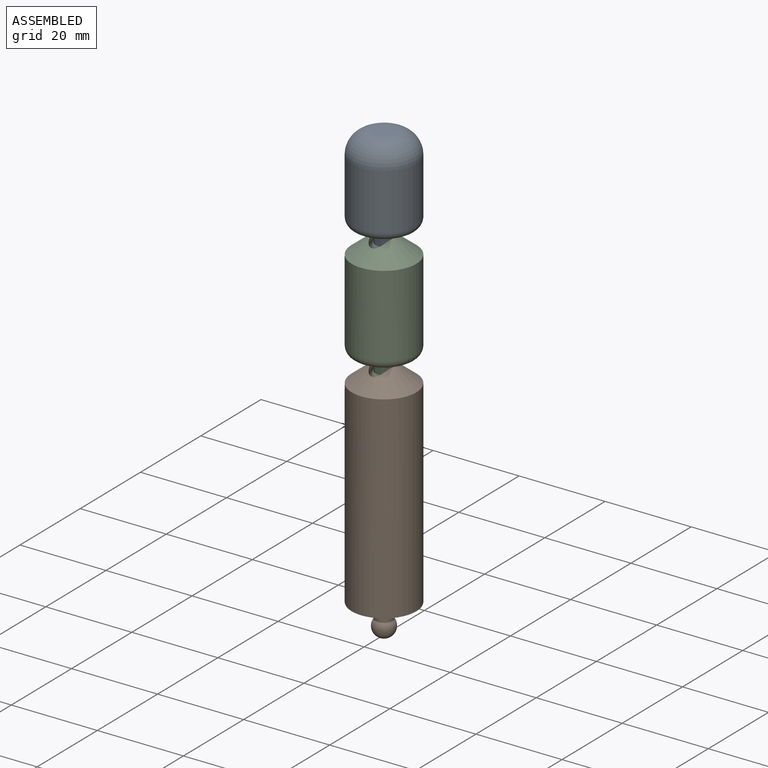
[diagram: assembled view]
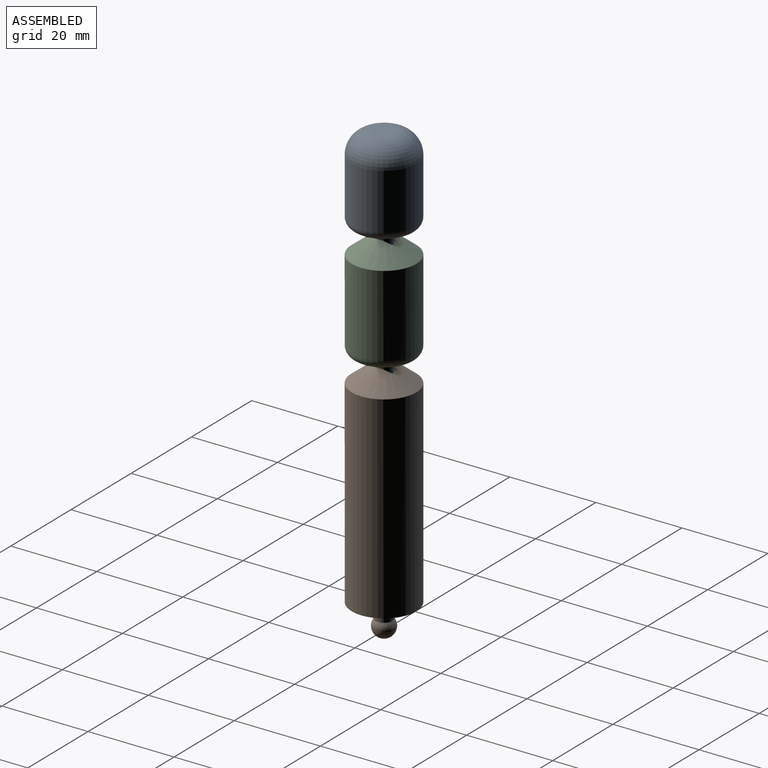
[diagram: assembled view, second angle]
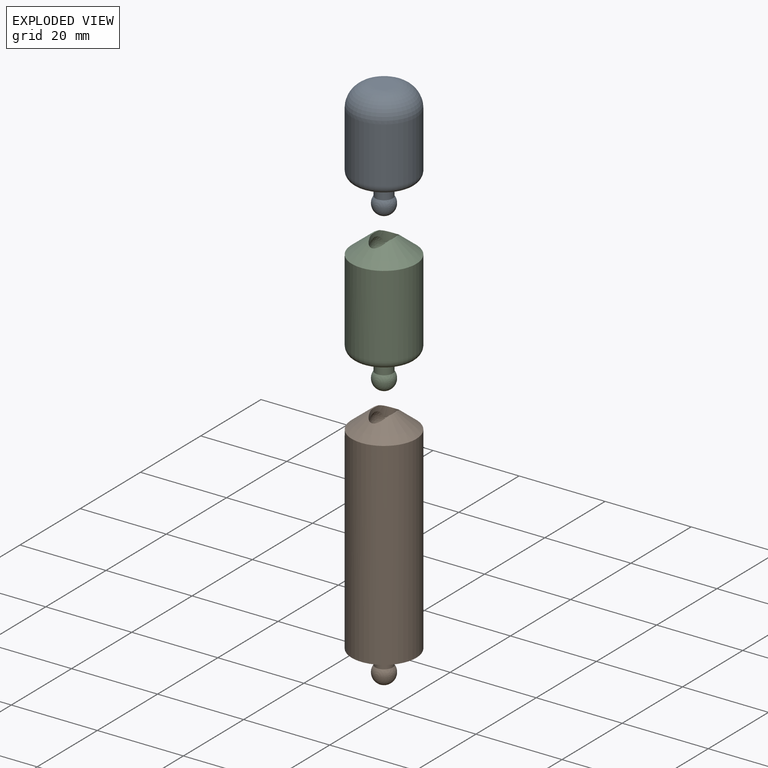
[diagram: exploded view]
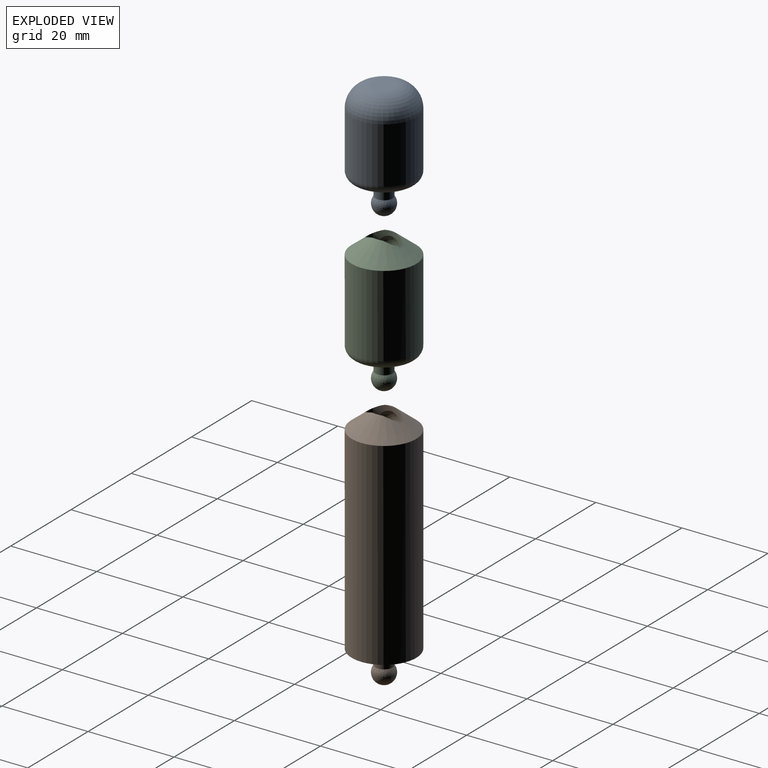
[diagram: exploded view, second angle]
ASSEMBLY  parts=3 mates=2
PART A: 9 faces, bbox 16.2x16.2x27.5 mm
  f0: cylinder r=7.5mm len=15mm, axis (0,0,-1), area 612.6mm2, adj f3,f6
  f1: plane 5x5mm, normal (0,0,1), area 19.6mm2, adj f3
  f2: plane 11x11mm, normal (0,0,-1), area 82.5mm2, adj f4,f6
  f3: torus R=2.5mm, axis (0,0,1), area 280.4mm2, adj f0,f1
  f4: cylinder r=2mm len=4mm, axis (0,0,1), area 44mm2, adj f2,f5
  f5: sphere r=2.5mm, area 62.8mm2, adj f4
  f6: torus R=5.5mm, axis (0,0,1), area 133.7mm2, adj f0,f2
  f7: sphere r=2mm, area 25.1mm2, adj f8
  f8: plane 4x4mm, normal (0,0,-1), area 12.6mm2, adj f7
PART B: 13 faces, bbox 15x15x57.5 mm
  f0: plane 2.64x0.38mm, normal (0,0,1), area 0.4mm2, adj f1,f10
  f1: extruded ~7.99x4.49mm, area 35mm2, adj f0,f2,f4,f8,f9,f10
  f2: plane 3.6x1.6mm, normal (0,0,1), area 2.6mm2, adj f1,f9
  f3: cylinder r=7.5mm len=46mm, axis (0,0,-1), area 2167.7mm2, adj f5,f10
  f4: plane 2.64x0.38mm, normal (0,0,1), area 0.4mm2, adj f1,f10
  f5: plane 15x15mm, normal (0,0,-1), area 164.1mm2, adj f3,f6
  f6: cylinder r=2mm len=4mm, axis (0,0,1), area 44mm2, adj f5,f7
  f7: sphere r=2.5mm, area 62.8mm2, adj f6
  f8: plane 3.6x1.6mm, normal (0,0,1), area 2.6mm2, adj f1,f9
  f9: sphere r=3mm, area 74.4mm2, adj f1,f2,f8
  f10: cone r=2.5mm half-angle=51.3deg, axis (0,0,-1), area 188.9mm2, adj f0,f1,f3,f4
  f11: sphere r=2mm, area 25.1mm2, adj f12
  f12: plane 4x4mm, normal (0,0,-1), area 12.6mm2, adj f11
PART C: 12 faces, bbox 16.2x16.2x32.5 mm
  f0: plane 2.64x0.38mm, normal (0,0,1), area 0.4mm2, adj f1,f10
  f1: extruded ~7.99x4.49mm, area 35mm2, adj f0,f2,f4,f8,f9,f10
  f2: plane 3.6x1.6mm, normal (0,0,1), area 2.6mm2, adj f1,f9
  f3: cylinder r=7.5mm len=19mm, axis (0,0,-1), area 895.4mm2, adj f10,f11
  f4: plane 2.64x0.38mm, normal (0,0,1), area 0.4mm2, adj f1,f10
  f5: plane 11x11mm, normal (0,0,-1), area 82.5mm2, adj f6,f11
  f6: cylinder r=2mm len=4mm, axis (0,0,1), area 44mm2, adj f5,f7
  f7: sphere r=2.5mm, area 62.8mm2, adj f6
  f8: plane 3.6x1.6mm, normal (0,0,1), area 2.6mm2, adj f1,f9
  f9: sphere r=3mm, area 74.4mm2, adj f1,f2,f8
  f10: cone r=2.5mm half-angle=51.3deg, axis (0,0,-1), area 188.9mm2, adj f0,f1,f3,f4
  f11: torus R=5.5mm, axis (0,0,1), area 133.7mm2, adj f3,f5
PLACE A t=(-41.29,-20.11,72.01)mm
PLACE B t=(-41.29,-20.11,-6.99)mm
PLACE C t=(-41.29,-20.11,45.01)mm
MATE slider A.f4 <-> C.f6  axis (0,0,1) through (-41.29,-20.11,72.01)mm
MATE slider C.f6 <-> B.f3  axis (0,0,1) through (-41.29,-20.11,45.01)mm
